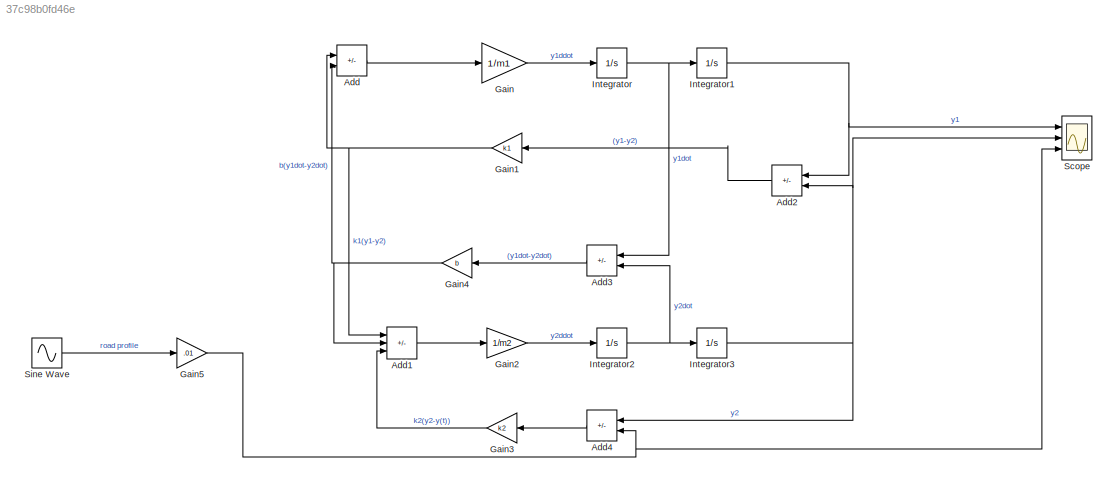
MODEL slx_37c98b0fd46e
KIND model
CONFIG AbsTol = auto
CONFIG EnableMultiTasking = off
CONFIG FixedStep = auto
CONFIG MaxStep = 0.001
CONFIG MinStep = auto
CONFIG RelTol = 1e-3
CONFIG SampleTimeConstraint = Unconstrained
CONFIG SolverName = ode45
CONFIG StartTime = 0.0
CONFIG StopTime = 100.0
WORKSPACE source: mxarray member
WORKSPACE b = 20
WORKSPACE k1 = 50
WORKSPACE k2 = 200
WORKSPACE m1 = 150
WORKSPACE m2 = 100
BLOCK [Sum] Add
  IconShape = rectangular
  Inputs = --
  Ports = [2, 1]
BLOCK [Sum] Add1
  IconShape = rectangular
  Inputs = ++-
  Ports = [3, 1]
BLOCK [Sum] Add2
  IconShape = rectangular
  Inputs = +-
  NameLocation = top
  Ports = [2, 1]
BLOCK [Sum] Add3
  IconShape = rectangular
  Inputs = +-
  NameLocation = top
  Ports = [2, 1]
BLOCK [Sum] Add4
  IconShape = rectangular
  Inputs = +-
  NameLocation = top
  Ports = [2, 1]
BLOCK [Gain] Gain
  Gain = 1/m1
BLOCK [Gain] Gain1
  Gain = k1
  NameLocation = top
BLOCK [Gain] Gain2
  Gain = 1/m2
BLOCK [Gain] Gain3
  Gain = k2
  NameLocation = top
BLOCK [Gain] Gain4
  Gain = b
  NameLocation = top
BLOCK [Gain] Gain5
  Gain = .01
BLOCK [Integrator] Integrator
  Ports = [1, 1]
BLOCK [Integrator] Integrator1
  Ports = [1, 1]
BLOCK [Integrator] Integrator2
  Ports = [1, 1]
BLOCK [Integrator] Integrator3
  Ports = [1, 1]
BLOCK [Scope] Scope
  Floating = off
  NumInputPorts = 3
  Ports = [3]
  ScopeSpecificationString = Simulink.scopes.TimeScopeBlockCfg('CurrentConfiguration', extmgr.ConfigurationSet(extmgr.Configuration('Core','General UI',true),extmgr.Configuration('Core','Source UI',true),extmgr.Configuration('Sources','WiredSimulink',true),extmgr.Configuration('Visuals','Time Domain',true,'SerializedDisplays',{struct('MinYLimReal','-0.00125','MaxYLimReal','0.00164','YLabelReal','','MinYLimMag','0.00000','MaxY...<+2715ch>
BLOCK [Sin] Sine Wave
  Amplitude = 2
  Frequency = 10
  Ports = [0, 1]
  SampleTime = 0
LINE Add1:1 -> Gain2:1
LINE Add2:1 -> Gain1:1
LINE Add3:1 -> Gain4:1
LINE Add4:1 -> Gain3:1
LINE Add:1 -> Gain:1
NET Gain1:1 -> Add1:1, Add:1
LINE Gain2:1 -> Integrator2:1
LINE Gain3:1 -> Add1:3
NET Gain4:1 -> Add1:2, Add:2
NET Gain5:1 -> Add4:2, Scope:3
LINE Gain:1 -> Integrator:1
NET Integrator1:1 -> Add2:1, Scope:1
NET Integrator2:1 -> Add3:2, Integrator3:1
NET Integrator3:1 -> Add2:2, Add4:1, Scope:2
NET Integrator:1 -> Add3:1, Integrator1:1
LINE Sine Wave:1 -> Gain5:1
note: NET lines group one-source signal fan-out (src -> all destinations, sorted); 1:1 wires keep LINE
